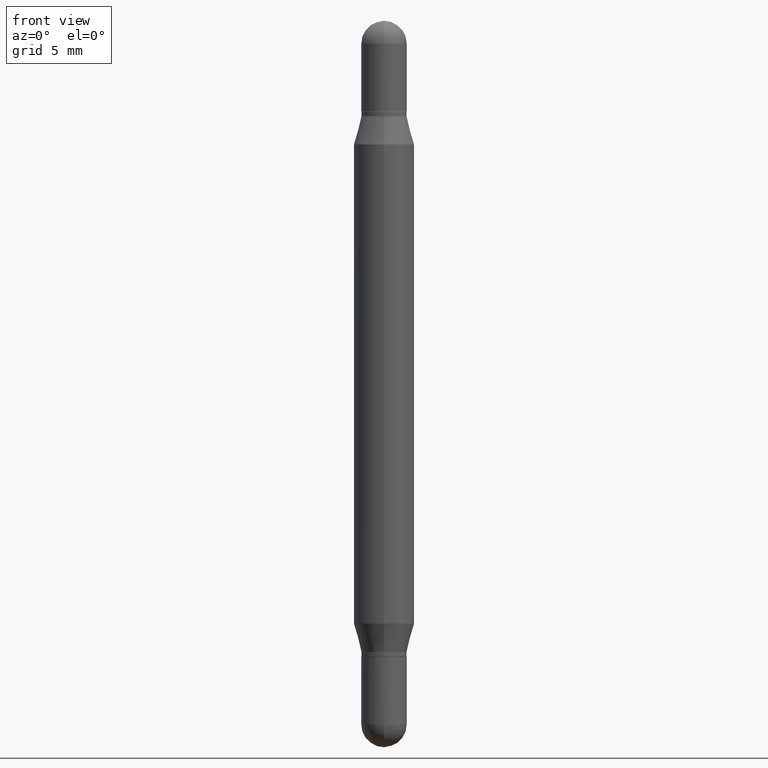
[diagram: clean part render]
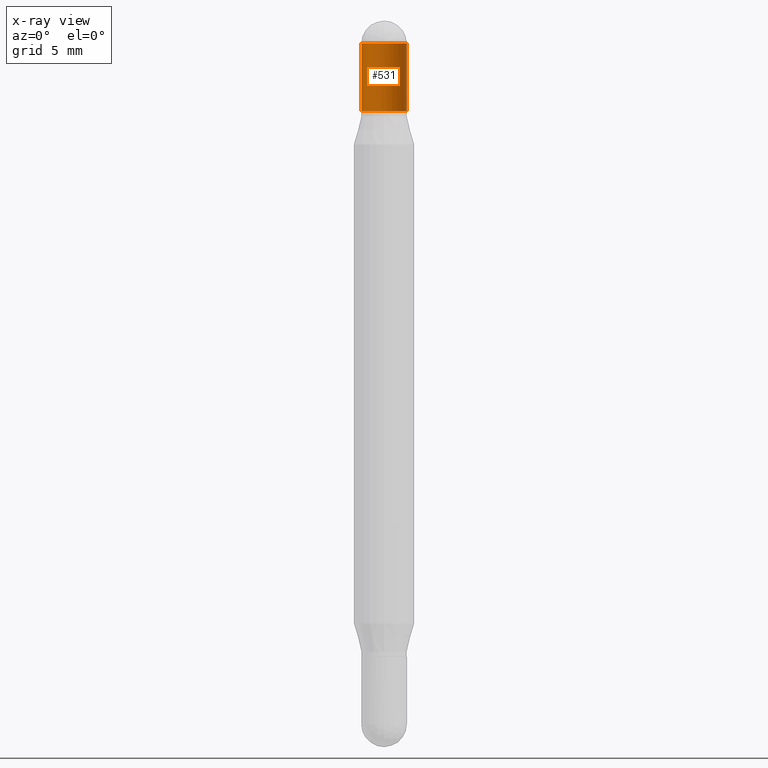
[diagram: x-ray — body ghosted, one internal face saturated and labeled with its STEP entity id]
A machine part, front view, then the same camera in x-ray: the body is ghosted and one INTERNAL B-rep face — a face not visible from any outside direction — is saturated and labeled: STEP entity #531.
In plain terms, the highlighted cylindrical surface (edge-blend (fillet) strip) has radius 1.1913 mm, axis along (-0, -0, -1).
Its self-contained STEP definition (entity closure, byte-faithful):
#17 = ORIENTED_EDGE ( 'NONE', *, *, #458, .F. ) ;
#63 = EDGE_CURVE ( 'NONE', #527, #1046, #131, .T. ) ;
#67 = AXIS2_PLACEMENT_3D ( 'NONE', #297, #293, #451 ) ;
#78 = VERTEX_POINT ( 'NONE', #550 ) ;
#106 = ORIENTED_EDGE ( 'NONE', *, *, #565, .T. ) ;
#108 = VECTOR ( 'NONE', #452, 39.37007874015748143 ) ;
#114 = FACE_OUTER_BOUND ( 'NONE', #249, .T. ) ;
#131 = LINE ( 'NONE', #286, #108 ) ;
#158 = AXIS2_PLACEMENT_3D ( 'NONE', #1075, #797, #192 ) ;
#161 = AXIS2_PLACEMENT_3D ( 'NONE', #922, #566, #310 ) ;
#192 = DIRECTION ( 'NONE',  ( 1.000000000000000000, -6.982962677686266711E-15, 0.000000000000000000 ) ) ;
#193 = VECTOR ( 'NONE', #1047, 39.37007874015748143 ) ;
#195 = ORIENTED_EDGE ( 'NONE', *, *, #696, .F. ) ;
#202 = ORIENTED_EDGE ( 'NONE', *, *, #63, .T. ) ;
#205 = CARTESIAN_POINT ( 'NONE',  ( 0.04689999999999999725, -7.433420153955291361E-16, -0.04689999999999971275 ) ) ;
#239 = DIRECTION ( 'NONE',  ( 1.000000000000000000, -6.982962677686266711E-15, 0.000000000000000000 ) ) ;
#249 = EDGE_LOOP ( 'NONE', ( #17, #195, #308, #202, #106 ) ) ;
#286 = CARTESIAN_POINT ( 'NONE',  ( 0.04689999999999999725, -5.555822803949214308E-15, -1.499999999999999556 ) ) ;
#293 = DIRECTION ( 'NONE',  ( -2.445468806185136597E-29, -3.479614466977828254E-15, -1.000000000000000000 ) ) ;
#297 = CARTESIAN_POINT ( 'NONE',  ( 0.000000000000000000, -5.228321854365729194E-15, -1.499999999999999556 ) ) ;
#308 = ORIENTED_EDGE ( 'NONE', *, *, #677, .F. ) ;
#310 = DIRECTION ( 'NONE',  ( 1.000000000000000000, -6.982962677686266711E-15, 0.000000000000000000 ) ) ;
#383 = CYLINDRICAL_SURFACE ( 'NONE', #67, 0.04689999999999999725 ) ;
#418 = DIRECTION ( 'NONE',  ( 2.445468806185136597E-29, 3.479614466977828254E-15, 1.000000000000000000 ) ) ;
#451 = DIRECTION ( 'NONE',  ( 1.000000000000000000, -6.982962677686256455E-15, 0.000000000000000000 ) ) ;
#452 = DIRECTION ( 'NONE',  ( -2.445468806185136877E-29, -3.479614466977828648E-15, -1.000000000000000000 ) ) ;
#458 = EDGE_CURVE ( 'NONE', #78, #754, #702, .T. ) ;
#527 = VERTEX_POINT ( 'NONE', #205 ) ;
#531 = ADVANCED_FACE ( 'NONE', ( #114 ), #383, .T. ) ;
#550 = CARTESIAN_POINT ( 'NONE',  ( -0.04689999999999999725, -9.408370971655837183E-17, -0.04689999999999971275 ) ) ;
#565 = EDGE_CURVE ( 'NONE', #1046, #754, #634, .T. ) ;
#566 = DIRECTION ( 'NONE',  ( 2.445468806185136597E-29, 3.479614466977828254E-15, 1.000000000000000000 ) ) ;
#592 = CIRCLE ( 'NONE', #161, 0.04689999999999999725 ) ;
#634 = CIRCLE ( 'NONE', #158, 0.04689999999999999725 ) ;
#657 = AXIS2_PLACEMENT_3D ( 'NONE', #1016, #418, #239 ) ;
#677 = EDGE_CURVE ( 'NONE', #527, #986, #683, .T. ) ;
#683 = CIRCLE ( 'NONE', #657, 0.04689999999999999725 ) ;
#696 = EDGE_CURVE ( 'NONE', #986, #78, #592, .T. ) ;
#702 = LINE ( 'NONE', #791, #193 ) ;
#742 = CARTESIAN_POINT ( 'NONE',  ( -0.04689999999999999725, -9.408370971655867998E-17, -0.1869999999999993889 ) ) ;
#754 = VERTEX_POINT ( 'NONE', #742 ) ;
#791 = CARTESIAN_POINT ( 'NONE',  ( -0.04689999999999999725, -4.906564498270243962E-15, -1.499999999999999556 ) ) ;
#797 = DIRECTION ( 'NONE',  ( 2.445468806185136597E-29, 3.479614466977828254E-15, 1.000000000000000000 ) ) ;
#922 = CARTESIAN_POINT ( 'NONE',  ( 3.553510722267622201E-29, -1.720940724002473634E-16, -0.04689999999999971275 ) ) ;
#986 = VERTEX_POINT ( 'NONE', #1116 ) ;
#1016 = CARTESIAN_POINT ( 'NONE',  ( 3.553510722267622201E-29, -1.720940724002473634E-16, -0.04689999999999971275 ) ) ;
#1046 = VERTEX_POINT ( 'NONE', #1059 ) ;
#1047 = DIRECTION ( 'NONE',  ( -2.445468806185136877E-29, -3.479614466977828648E-15, -1.000000000000000000 ) ) ;
#1059 = CARTESIAN_POINT ( 'NONE',  ( 0.04689999999999999725, -9.870890088073255488E-16, -0.1869999999999993889 ) ) ;
#1075 = CARTESIAN_POINT ( 'NONE',  ( 3.210900542521084585E-29, -6.595880592238396464E-16, -0.1869999999999993889 ) ) ;
#1116 = CARTESIAN_POINT ( 'NONE',  ( 3.275009495835214505E-16, 0.04689999999999983071, -0.04689999999999987235 ) ) ;